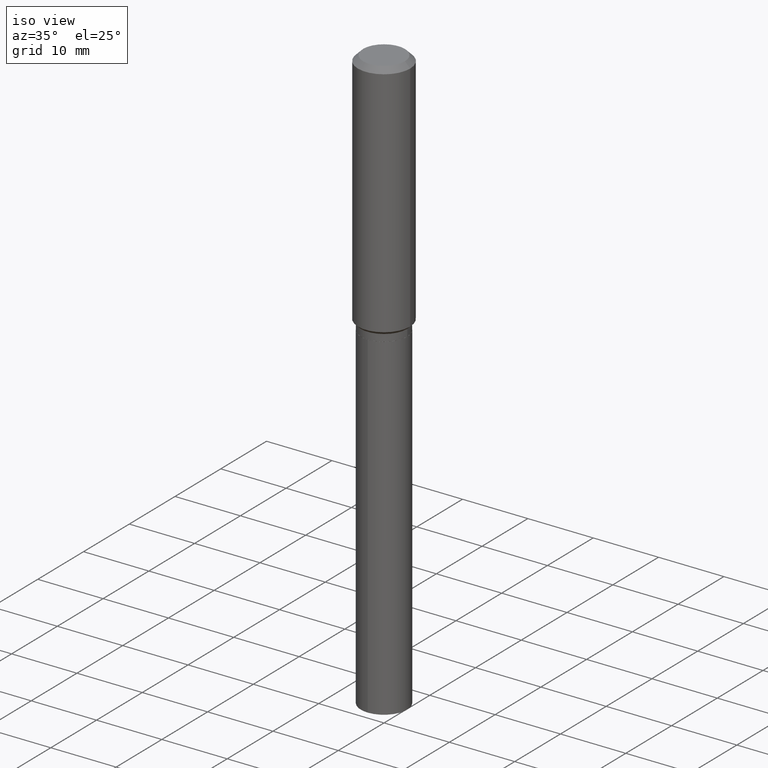
[diagram: clean part render]
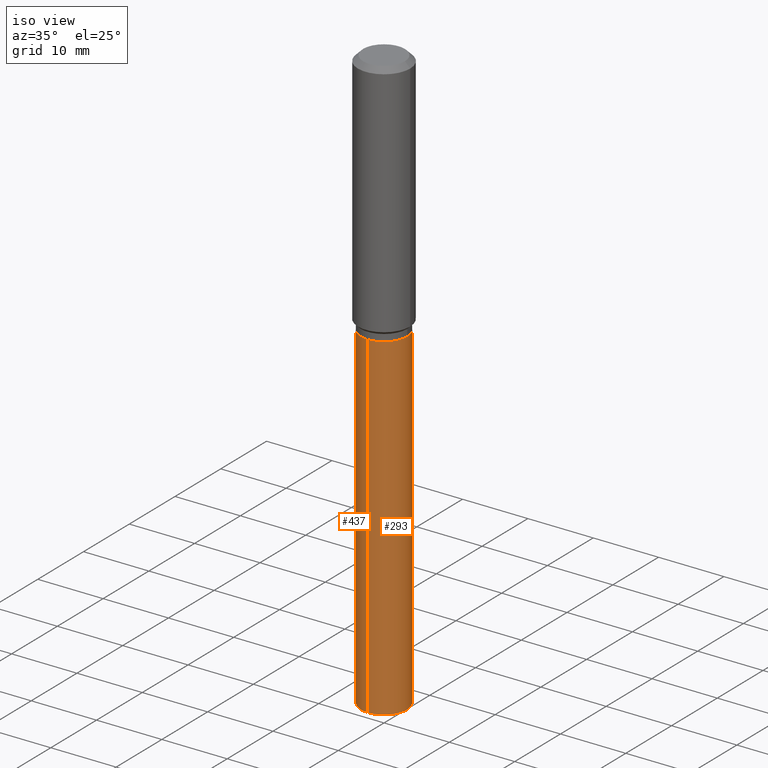
[diagram: same view with one multi-face feature highlighted, each face labeled with its STEP entity id]
A machine part, iso view. The highlighted faces form ONE feature: a constant-radius fillet chain: 2 tangent blend faces with common blend radius 3.5497 mm. The faces share edges in the B-rep.
Their STEP definitions:
[1] entity #293 (Cylinder):
#12 = VERTEX_POINT ( 'NONE', #147 ) ;
#18 = VERTEX_POINT ( 'NONE', #379 ) ;
#76 = CARTESIAN_POINT ( 'NONE',  ( 9.929834732247765877E-16, 0.1397499999999947951, -1.496400000000000841 ) ) ;
#96 = CARTESIAN_POINT ( 'NONE',  ( -9.758690342065698106E-16, -0.1397500000000123643, -3.527951011032812279 ) ) ;
#101 = CARTESIAN_POINT ( 'NONE',  ( -9.758690342066191144E-16, -0.1397500000000052311, -1.496399999999999730 ) ) ;
#108 = CARTESIAN_POINT ( 'NONE',  ( -9.758690342066191144E-16, -0.1397500000000052311, -1.496399999999999730 ) ) ;
#116 = EDGE_CURVE ( 'NONE', #18, #12, #397, .T. ) ;
#133 = CARTESIAN_POINT ( 'NONE',  ( 3.659399521575438742E-29, -5.224652675444883351E-15, -1.496400000000000174 ) ) ;
#137 = DIRECTION ( 'NONE',  ( -2.445425864037539637E-29, 3.491542834442619495E-15, 1.000000000000000000 ) ) ;
#141 = AXIS2_PLACEMENT_3D ( 'NONE', #340, #444, #419 ) ;
#147 = CARTESIAN_POINT ( 'NONE',  ( 9.929834732248264831E-16, 0.1397499999999947951, -1.496400000000000841 ) ) ;
#150 = EDGE_CURVE ( 'NONE', #239, #12, #393, .T. ) ;
#154 = VECTOR ( 'NONE', #181, 39.37007874015748143 ) ;
#169 = LINE ( 'NONE', #101, #271 ) ;
#173 = FACE_OUTER_BOUND ( 'NONE', #389, .T. ) ;
#175 = AXIS2_PLACEMENT_3D ( 'NONE', #258, #224, #260 ) ;
#181 = DIRECTION ( 'NONE',  ( -2.445425864037539356E-29, 3.491542834442619101E-15, 1.000000000000000000 ) ) ;
#224 = DIRECTION ( 'NONE',  ( -2.445425864037539637E-29, 3.491542834442619495E-15, 1.000000000000000000 ) ) ;
#239 = VERTEX_POINT ( 'NONE', #108 ) ;
#242 = ORIENTED_EDGE ( 'NONE', *, *, #150, .F. ) ;
#253 = DIRECTION ( 'NONE',  ( -6.982962677686265133E-15, -1.000000000000000000, 3.909621457837943227E-15 ) ) ;
#255 = EDGE_CURVE ( 'NONE', #321, #239, #169, .T. ) ;
#258 = CARTESIAN_POINT ( 'NONE',  ( 3.659399521575438742E-29, -5.224652675444883351E-15, -1.496400000000000174 ) ) ;
#260 = DIRECTION ( 'NONE',  ( -6.982962677686265133E-15, -1.000000000000000000, 3.909621457837943227E-15 ) ) ;
#271 = VECTOR ( 'NONE', #478, 39.37007874015748143 ) ;
#274 = ORIENTED_EDGE ( 'NONE', *, *, #116, .T. ) ;
#293 = ADVANCED_FACE ( 'NONE', ( #173 ), #326, .T. ) ;
#321 = VERTEX_POINT ( 'NONE', #96 ) ;
#326 = CYLINDRICAL_SURFACE ( 'NONE', #434, 0.1397500000000000131 ) ;
#340 = CARTESIAN_POINT ( 'NONE',  ( 8.627406908066692635E-29, -1.231790005082116085E-14, -3.527951011032812723 ) ) ;
#379 = CARTESIAN_POINT ( 'NONE',  ( 9.929834732248264831E-16, 0.1397499999999877451, -3.527951011032813611 ) ) ;
#387 = ORIENTED_EDGE ( 'NONE', *, *, #255, .F. ) ;
#389 = EDGE_LOOP ( 'NONE', ( #430, #274, #242, #387 ) ) ;
#393 = CIRCLE ( 'NONE', #175, 0.1397500000000000131 ) ;
#397 = LINE ( 'NONE', #76, #154 ) ;
#419 = DIRECTION ( 'NONE',  ( -6.982962677686265133E-15, -1.000000000000000000, 3.909621457837943227E-15 ) ) ;
#430 = ORIENTED_EDGE ( 'NONE', *, *, #460, .T. ) ;
#434 = AXIS2_PLACEMENT_3D ( 'NONE', #133, #137, #253 ) ;
#444 = DIRECTION ( 'NONE',  ( -2.445425864037539637E-29, 3.491542834442619495E-15, 1.000000000000000000 ) ) ;
#459 = CIRCLE ( 'NONE', #141, 0.1397500000000000131 ) ;
#460 = EDGE_CURVE ( 'NONE', #321, #18, #459, .T. ) ;
#478 = DIRECTION ( 'NONE',  ( -2.445425864037539356E-29, 3.491542834442619101E-15, 1.000000000000000000 ) ) ;
[2] entity #437 (Cylinder):
#12 = VERTEX_POINT ( 'NONE', #147 ) ;
#16 = ORIENTED_EDGE ( 'NONE', *, *, #116, .F. ) ;
#18 = VERTEX_POINT ( 'NONE', #379 ) ;
#27 = CARTESIAN_POINT ( 'NONE',  ( 3.659399521575438742E-29, -5.224652675444883351E-15, -1.496400000000000174 ) ) ;
#63 = EDGE_CURVE ( 'NONE', #12, #239, #90, .T. ) ;
#70 = CARTESIAN_POINT ( 'NONE',  ( 8.627406908066692635E-29, -1.231790005082116085E-14, -3.527951011032812723 ) ) ;
#76 = CARTESIAN_POINT ( 'NONE',  ( 9.929834732247765877E-16, 0.1397499999999947951, -1.496400000000000841 ) ) ;
#90 = CIRCLE ( 'NONE', #328, 0.1397500000000000131 ) ;
#96 = CARTESIAN_POINT ( 'NONE',  ( -9.758690342065698106E-16, -0.1397500000000123643, -3.527951011032812279 ) ) ;
#101 = CARTESIAN_POINT ( 'NONE',  ( -9.758690342066191144E-16, -0.1397500000000052311, -1.496399999999999730 ) ) ;
#108 = CARTESIAN_POINT ( 'NONE',  ( -9.758690342066191144E-16, -0.1397500000000052311, -1.496399999999999730 ) ) ;
#111 = DIRECTION ( 'NONE',  ( -6.982962677686265133E-15, -1.000000000000000000, 3.909621457837943227E-15 ) ) ;
#116 = EDGE_CURVE ( 'NONE', #18, #12, #397, .T. ) ;
#121 = ORIENTED_EDGE ( 'NONE', *, *, #440, .T. ) ;
#144 = CIRCLE ( 'NONE', #483, 0.1397500000000000131 ) ;
#147 = CARTESIAN_POINT ( 'NONE',  ( 9.929834732248264831E-16, 0.1397499999999947951, -1.496400000000000841 ) ) ;
#154 = VECTOR ( 'NONE', #181, 39.37007874015748143 ) ;
#162 = CARTESIAN_POINT ( 'NONE',  ( 3.659399521575438742E-29, -5.224652675444883351E-15, -1.496400000000000174 ) ) ;
#169 = LINE ( 'NONE', #101, #271 ) ;
#181 = DIRECTION ( 'NONE',  ( -2.445425864037539356E-29, 3.491542834442619101E-15, 1.000000000000000000 ) ) ;
#231 = AXIS2_PLACEMENT_3D ( 'NONE', #27, #450, #413 ) ;
#239 = VERTEX_POINT ( 'NONE', #108 ) ;
#255 = EDGE_CURVE ( 'NONE', #321, #239, #169, .T. ) ;
#271 = VECTOR ( 'NONE', #478, 39.37007874015748143 ) ;
#280 = EDGE_LOOP ( 'NONE', ( #16, #121, #432, #282 ) ) ;
#282 = ORIENTED_EDGE ( 'NONE', *, *, #63, .F. ) ;
#308 = DIRECTION ( 'NONE',  ( -2.445425864037539637E-29, 3.491542834442619495E-15, 1.000000000000000000 ) ) ;
#311 = DIRECTION ( 'NONE',  ( -6.982962677686265133E-15, -1.000000000000000000, 3.909621457837943227E-15 ) ) ;
#321 = VERTEX_POINT ( 'NONE', #96 ) ;
#328 = AXIS2_PLACEMENT_3D ( 'NONE', #162, #308, #311 ) ;
#334 = FACE_OUTER_BOUND ( 'NONE', #280, .T. ) ;
#374 = CYLINDRICAL_SURFACE ( 'NONE', #231, 0.1397500000000000131 ) ;
#379 = CARTESIAN_POINT ( 'NONE',  ( 9.929834732248264831E-16, 0.1397499999999877451, -3.527951011032813611 ) ) ;
#397 = LINE ( 'NONE', #76, #154 ) ;
#413 = DIRECTION ( 'NONE',  ( -6.982962677686265133E-15, -1.000000000000000000, 3.909621457837943227E-15 ) ) ;
#432 = ORIENTED_EDGE ( 'NONE', *, *, #255, .T. ) ;
#437 = ADVANCED_FACE ( 'NONE', ( #334 ), #374, .T. ) ;
#440 = EDGE_CURVE ( 'NONE', #18, #321, #144, .T. ) ;
#450 = DIRECTION ( 'NONE',  ( -2.445425864037539637E-29, 3.491542834442619495E-15, 1.000000000000000000 ) ) ;
#453 = DIRECTION ( 'NONE',  ( -2.445425864037539637E-29, 3.491542834442619495E-15, 1.000000000000000000 ) ) ;
#478 = DIRECTION ( 'NONE',  ( -2.445425864037539356E-29, 3.491542834442619101E-15, 1.000000000000000000 ) ) ;
#483 = AXIS2_PLACEMENT_3D ( 'NONE', #70, #453, #111 ) ;